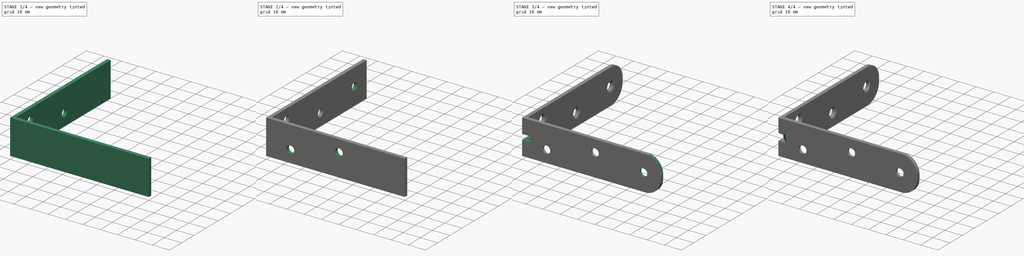
[diagram: build sequence overview — one tinted view per stage of 4, left to right]
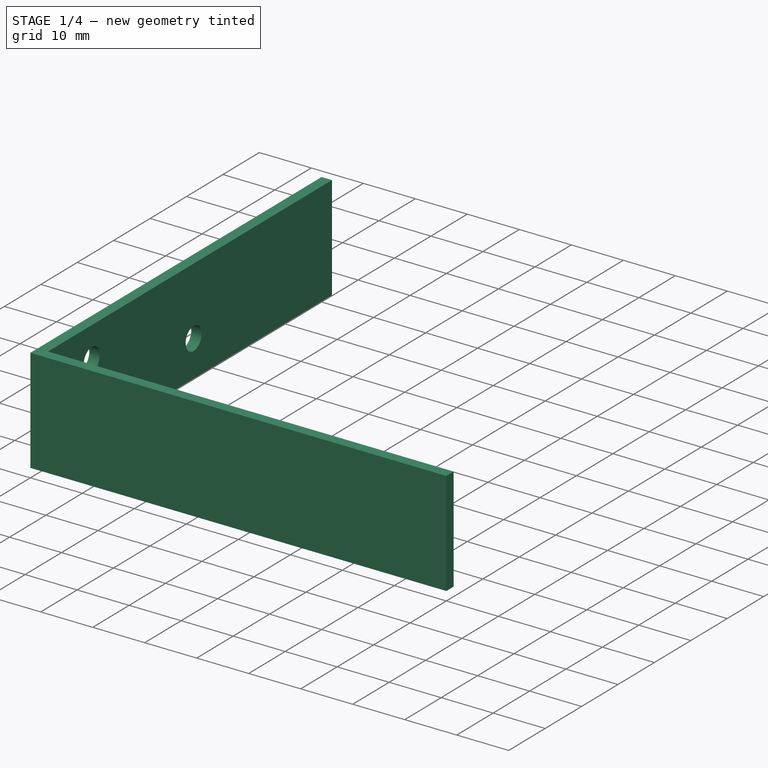
[diagram: stage 1 of 4 — iso view after this stage's code; geometry added in this stage tinted green]
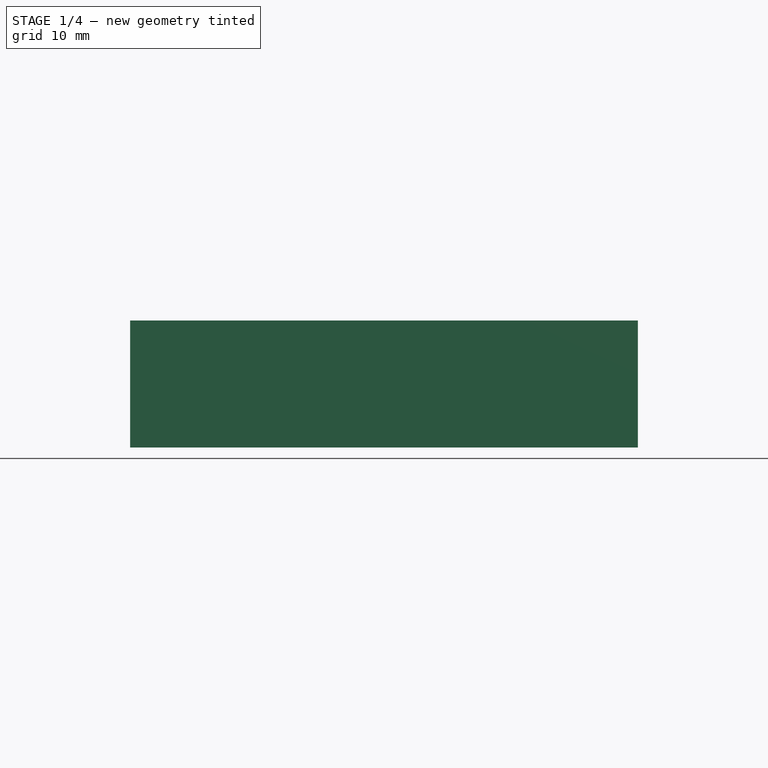
[diagram: stage 1 of 4 — front view after this stage's code; geometry added in this stage tinted green]
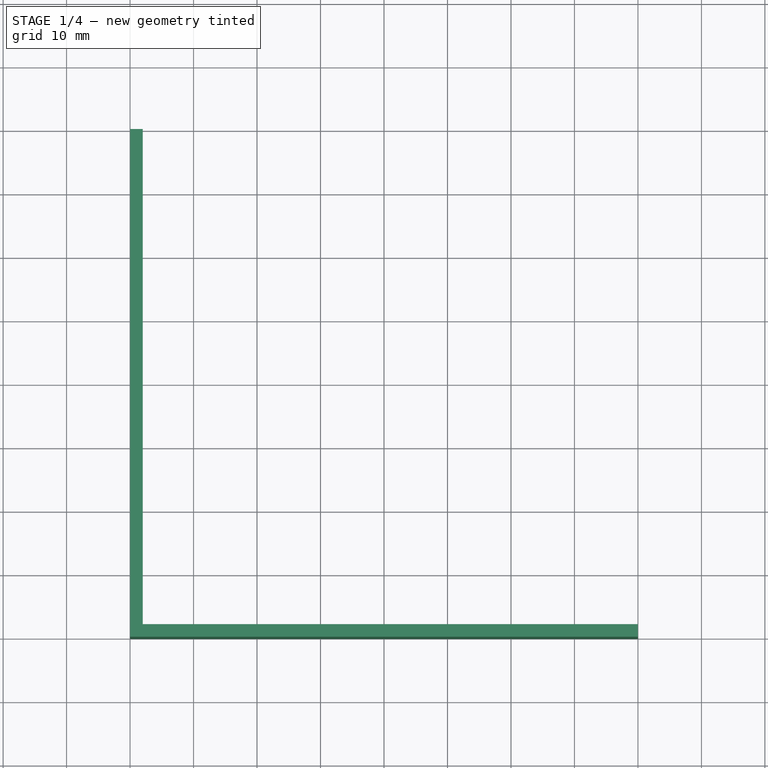
[diagram: stage 1 of 4 — top view after this stage's code; geometry added in this stage tinted green]
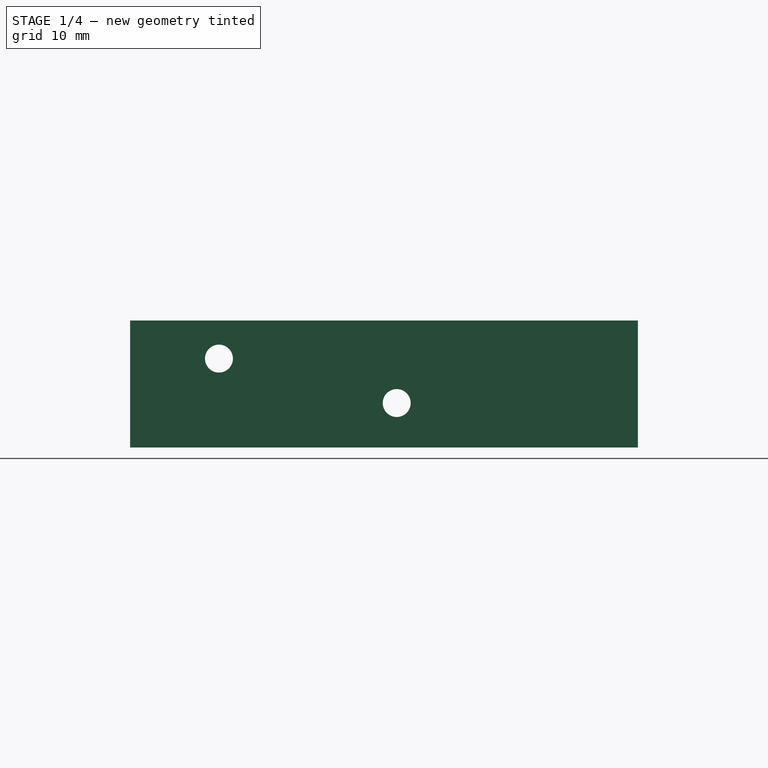
[diagram: stage 1 of 4 — right view after this stage's code; geometry added in this stage tinted green]
FCSTD DOCUMENT  (FreeCAD 1.1R20260325 (Git shallow))
Label: Angle_80_x_80_x_20_mm
License: All rights reserved
LicenseURL: http://en.wikipedia.org/wiki/All_rights_reserved
objects: Sketcher::SketchObject×9, PartDesign::Hole×6, PartDesign::Fillet×4, PartDesign::Pad×2, App::LinkGroup×2, App::Point×2, PartDesign::Pocket×1, PartDesign::Body×1, App::Part×1
note: 58 computed .brp shape members not serialized (recipe doc carries the construction recipe); baked Part::Feature solids carry a one-line shape summary decoded from their .brp

FEATURE [Sketcher::SketchObject] Sketch
  ArcFitTolerance = 0
  AttachmentSupport = -> [XY_Plane001]
  ExternalTypes = [0]
  FullyConstrained = true
  MakeInternals = false
  MapMode = 5
  _ExternalGeoVersion = 0
  sketch-geometry (6):
    g0: LineSegment StartX=0 StartY=80 StartZ=0 EndX=0 EndY=0 EndZ=0
    g1: LineSegment StartX=0 StartY=0 StartZ=0 EndX=80 EndY=0 EndZ=0
    g2: LineSegment StartX=80 StartY=0 StartZ=0 EndX=80 EndY=2 EndZ=0
    g3: LineSegment StartX=80 StartY=2 StartZ=0 EndX=2 EndY=2 EndZ=0
    g4: LineSegment StartX=2 StartY=2 StartZ=0 EndX=2 EndY=80 EndZ=0
    g5: LineSegment StartX=2 StartY=80 StartZ=0 EndX=0 EndY=80 EndZ=0
  constraints (17):
    c: PointOnObject(g0,g-2)
    c: Coincident(g0,g-1)
    c: Coincident(g0,g1)
    c: PointOnObject(g1,g-1)
    c: Coincident(g1,g2)
    c: Vertical(g2)
    c: Coincident(g2,g3)
    c: Horizontal(g3)
    c: Coincident(g3,g4)
    c: Vertical(g4)
    c: Coincident(g4,g5)
    c: Coincident(g5,g0)
    c: Horizontal(g5)
    c: Equal(g5,g2)
    c: Equal(g0,g1)
    c: DistanceX(g1,g1) = 80
    c: DistanceY(g2,g2) = 2
FEATURE [PartDesign::Pad] Pad
  Direction = (0,0,1)
  Length = 20
  Length2 = 10
  Profile = -> Sketch
  ReferenceAxis = -> Sketch [N_Axis]
  SideType = 0
  Suppressed = false
  Type = 0
  Type2 = 0
FEATURE [Sketcher::SketchObject] Sketch001
  ArcFitTolerance = 0
  AttachmentOffset = pos=(0,0,2) rot=(0,0,1;0rad)
  AttachmentSupport = -> [YZ_Plane001]
  ExternalTypes = [0]
  FullyConstrained = true
  MakeInternals = false
  MapMode = 5
  Placement = pos=(2,0,0) rot=(0.57735,0.57735,0.57735;2.0944rad)
  _ExternalGeoVersion = 0
  sketch-geometry (1):
    g0: Circle CenterX=14 CenterY=14 CenterZ=0 NormalX=0 NormalY=0 NormalZ=1 AngleXU=0 Radius=2.2
  constraints (3):
    c: DistanceY(g-1,g0) = 14
    c: DistanceX(g-1,g0) = 14
    c: Diameter(g0) = 4.4
FEATURE [PartDesign::Hole] Hole
  BaseFeature = -> Pad
  BaseProfileType = 6
  CustomThreadClearance = 0
  Depth = 232.08
  DepthType = 1
  Diameter = 4.4
  DrillForDepth = false
  DrillPoint = 1
  DrillPointAngle = 118
  HoleCutCountersinkAngle = 90
  HoleCutCustomValues = false
  HoleCutDepth = 0
  HoleCutDiameter = 6.1
  HoleCutType = 0
  ModelThread = false
  Profile = -> Sketch001
  Suppressed = false
  Tapered = false
  TaperedAngle = 90
  ThreadClass = 0
  ThreadDepth = 232.08
  ThreadDepthType = 0
  ThreadDiameter = 4.4
  ThreadDirection = 0
  ThreadFit = 0
  ThreadSize = 0
  ThreadType = 0
  Threaded = false
  UseCustomThreadClearance = false
FEATURE [Sketcher::SketchObject] Sketch002
  ArcFitTolerance = 0
  AttachmentOffset = pos=(0,0,2) rot=(0,0,1;0rad)
  AttachmentSupport = -> [YZ_Plane001]
  ExternalTypes = [0]
  FullyConstrained = true
  MakeInternals = false
  MapMode = 5
  Placement = pos=(2,0,0) rot=(0.57735,0.57735,0.57735;2.0944rad)
  _ExternalGeoVersion = 0
  sketch-geometry (1):
    g0: Circle CenterX=42 CenterY=7 CenterZ=0 NormalX=0 NormalY=0 NormalZ=1 AngleXU=0 Radius=2.2
  constraints (3):
    c: DistanceX(g-1,g0) = 42
    c: DistanceY(g-1,g0) = 7
    c: Diameter(g0) = 4.4
FEATURE [PartDesign::Hole] Hole001
  BaseFeature = -> Hole
  BaseProfileType = 6
  CustomThreadClearance = 0
  Depth = 232.08
  DepthType = 1
  Diameter = 4.4
  DrillForDepth = false
  DrillPoint = 1
  DrillPointAngle = 118
  HoleCutCountersinkAngle = 90
  HoleCutCustomValues = false
  HoleCutDepth = 0
  HoleCutDiameter = 6.1
  HoleCutType = 0
  ModelThread = false
  Profile = -> Sketch002
  Suppressed = false
  Tapered = false
  TaperedAngle = 90
  ThreadClass = 0
  ThreadDepth = 232.08
  ThreadDepthType = 0
  ThreadDiameter = 4.4
  ThreadDirection = 0
  ThreadFit = 0
  ThreadSize = 0
  ThreadType = 0
  Threaded = false
  UseCustomThreadClearance = false
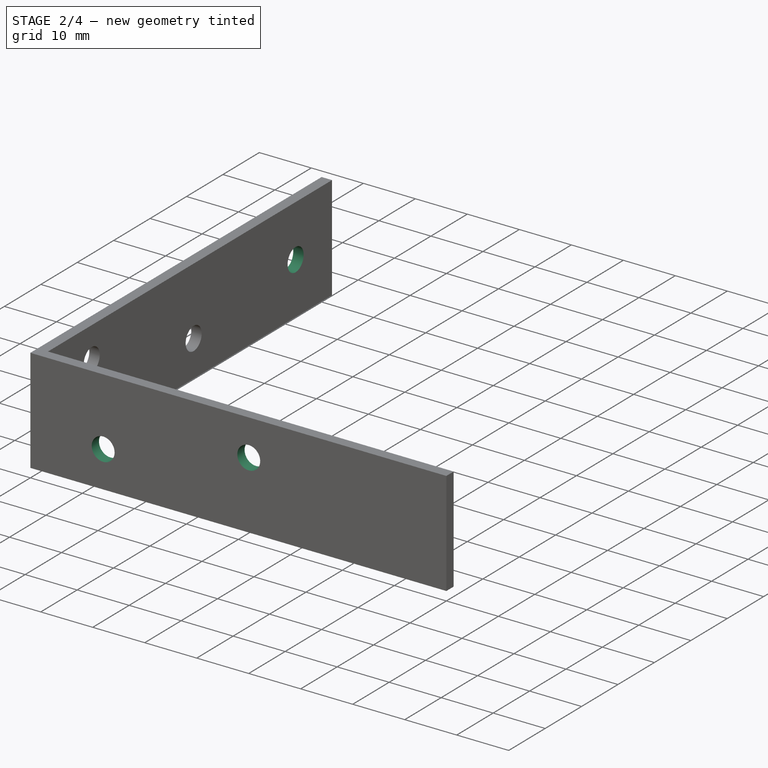
[diagram: stage 2 of 4 — iso view after this stage's code; geometry added in this stage tinted green]
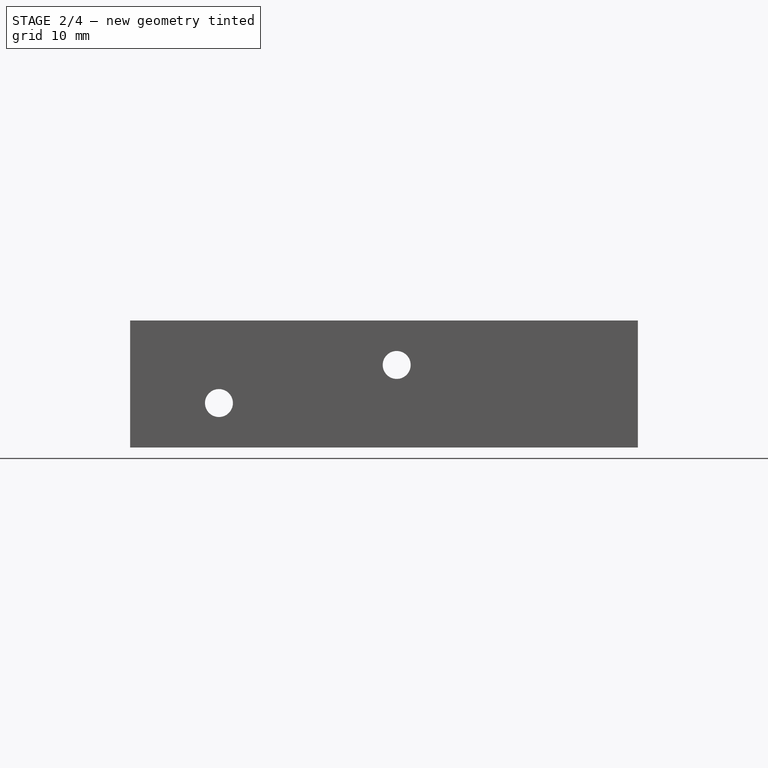
[diagram: stage 2 of 4 — front view after this stage's code; geometry added in this stage tinted green]
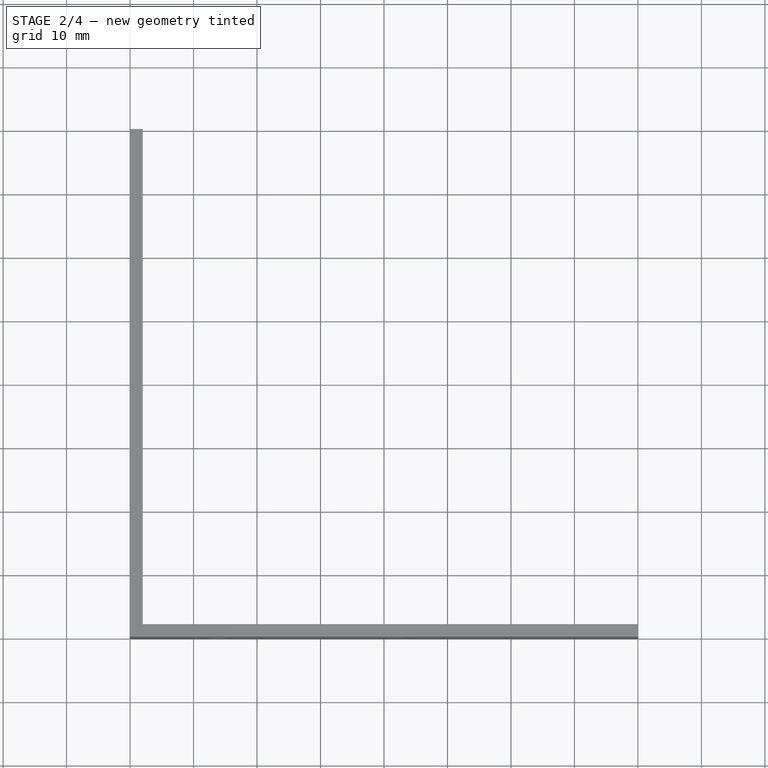
[diagram: stage 2 of 4 — top view after this stage's code; geometry added in this stage tinted green]
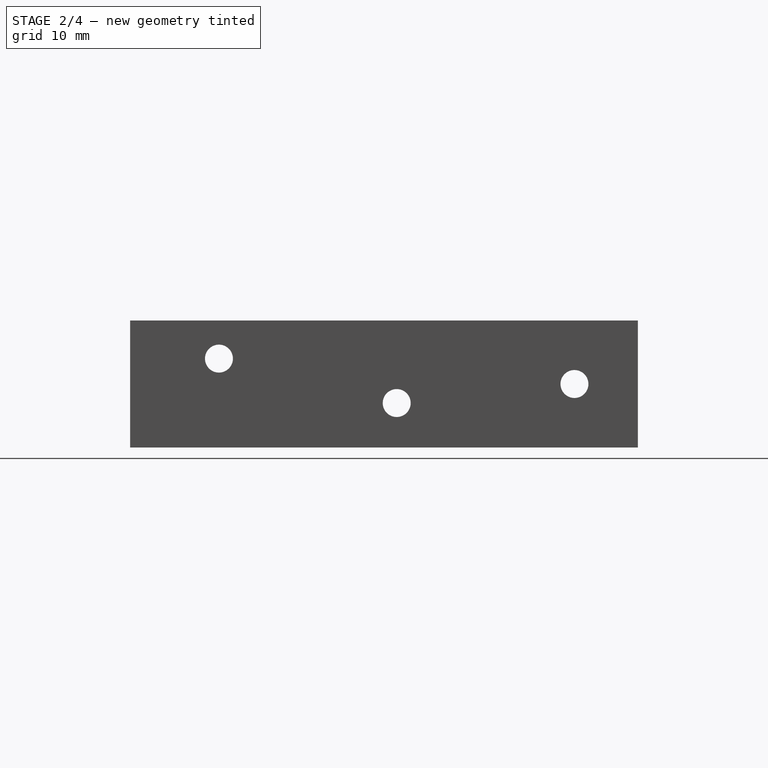
[diagram: stage 2 of 4 — right view after this stage's code; geometry added in this stage tinted green]
FEATURE [Sketcher::SketchObject] Sketch003
  ArcFitTolerance = 0
  AttachmentOffset = pos=(0,0,2) rot=(0,0,1;0rad)
  AttachmentSupport = -> [YZ_Plane001]
  ExternalTypes = [0]
  FullyConstrained = true
  MakeInternals = false
  MapMode = 5
  Placement = pos=(2,0,0) rot=(0.57735,0.57735,0.57735;2.0944rad)
  _ExternalGeoVersion = 0
  sketch-geometry (1):
    g0: Circle CenterX=70 CenterY=10 CenterZ=0 NormalX=0 NormalY=0 NormalZ=1 AngleXU=0 Radius=2.2
  constraints (3):
    c: DistanceX(g-1,g0) = 70
    c: DistanceY(g-1,g0) = 10
    c: Diameter(g0) = 4.4
FEATURE [PartDesign::Hole] Hole002
  BaseFeature = -> Hole001
  BaseProfileType = 6
  CustomThreadClearance = 0
  Depth = 232.08
  DepthType = 1
  Diameter = 4.4
  DrillForDepth = false
  DrillPoint = 1
  DrillPointAngle = 118
  HoleCutCountersinkAngle = 90
  HoleCutCustomValues = false
  HoleCutDepth = 0
  HoleCutDiameter = 6.1
  HoleCutType = 0
  ModelThread = false
  Profile = -> Sketch003
  Suppressed = false
  Tapered = false
  TaperedAngle = 90
  ThreadClass = 0
  ThreadDepth = 232.08
  ThreadDepthType = 0
  ThreadDiameter = 4.4
  ThreadDirection = 0
  ThreadFit = 0
  ThreadSize = 0
  ThreadType = 0
  Threaded = false
  UseCustomThreadClearance = false
FEATURE [Sketcher::SketchObject] Sketch004
  ArcFitTolerance = 0
  AttachmentSupport = -> [XZ_Plane001]
  ExternalTypes = [0]
  FullyConstrained = true
  MakeInternals = false
  MapMode = 5
  Placement = pos=(0,0,0) rot=(1,0,0;1.5708rad)
  _ExternalGeoVersion = 0
  sketch-geometry (1):
    g0: Circle CenterX=14 CenterY=7 CenterZ=0 NormalX=0 NormalY=0 NormalZ=1 AngleXU=0 Radius=2.2
  constraints (3):
    c: DistanceX(g-1,g0) = 14
    c: DistanceY(g-1,g0) = 7
    c: Diameter(g0) = 4.4
FEATURE [PartDesign::Hole] Hole003
  BaseFeature = -> Hole002
  BaseProfileType = 6
  CustomThreadClearance = 0
  Depth = 232.08
  DepthType = 1
  Diameter = 4.4
  DrillForDepth = false
  DrillPoint = 1
  DrillPointAngle = 118
  HoleCutCountersinkAngle = 90
  HoleCutCustomValues = false
  HoleCutDepth = 0
  HoleCutDiameter = 6.1
  HoleCutType = 0
  ModelThread = false
  Profile = -> Sketch004
  Suppressed = false
  Tapered = false
  TaperedAngle = 90
  ThreadClass = 0
  ThreadDepth = 232.08
  ThreadDepthType = 0
  ThreadDiameter = 4.4
  ThreadDirection = 0
  ThreadFit = 0
  ThreadSize = 0
  ThreadType = 0
  Threaded = false
  UseCustomThreadClearance = false
FEATURE [Sketcher::SketchObject] Sketch005
  ArcFitTolerance = 0
  AttachmentSupport = -> [XZ_Plane001]
  ExternalTypes = [0]
  FullyConstrained = true
  MakeInternals = false
  MapMode = 5
  Placement = pos=(0,0,0) rot=(1,0,0;1.5708rad)
  _ExternalGeoVersion = 0
  sketch-geometry (1):
    g0: Circle CenterX=42 CenterY=13 CenterZ=0 NormalX=0 NormalY=0 NormalZ=1 AngleXU=0 Radius=2.2
  constraints (3):
    c: DistanceX(g-1,g0) = 42
    c: DistanceY(g-1,g0) = 13
    c: Diameter(g0) = 4.4
FEATURE [PartDesign::Hole] Hole004
  BaseFeature = -> Hole003
  BaseProfileType = 6
  CustomThreadClearance = 0
  Depth = 232.08
  DepthType = 1
  Diameter = 4.4
  DrillForDepth = false
  DrillPoint = 1
  DrillPointAngle = 118
  HoleCutCountersinkAngle = 90
  HoleCutCustomValues = false
  HoleCutDepth = 0
  HoleCutDiameter = 6.1
  HoleCutType = 0
  ModelThread = false
  Profile = -> Sketch005
  Suppressed = false
  Tapered = false
  TaperedAngle = 90
  ThreadClass = 0
  ThreadDepth = 232.08
  ThreadDepthType = 0
  ThreadDiameter = 4.4
  ThreadDirection = 0
  ThreadFit = 0
  ThreadSize = 0
  ThreadType = 0
  Threaded = false
  UseCustomThreadClearance = false
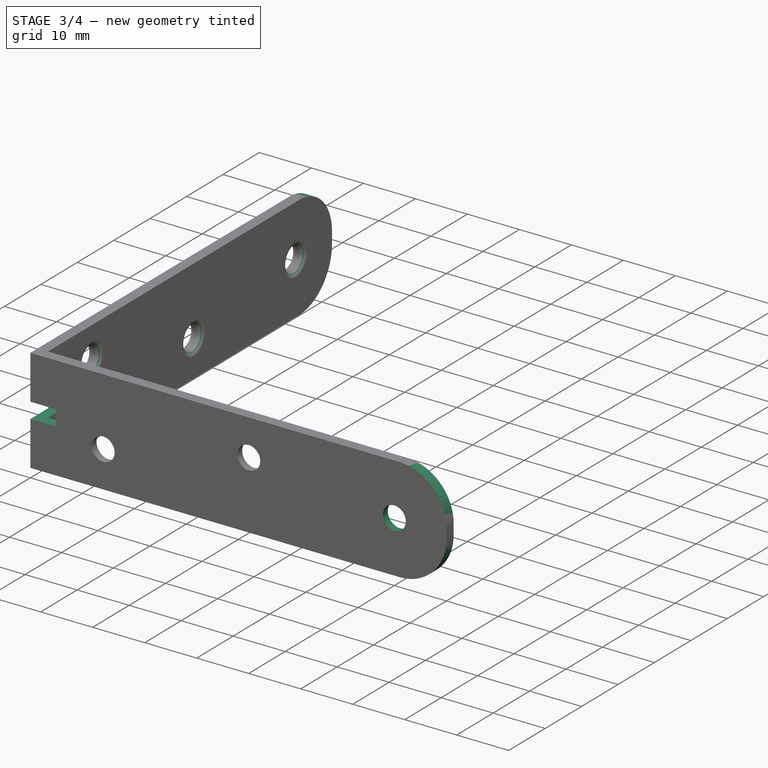
[diagram: stage 3 of 4 — iso view after this stage's code; geometry added in this stage tinted green]
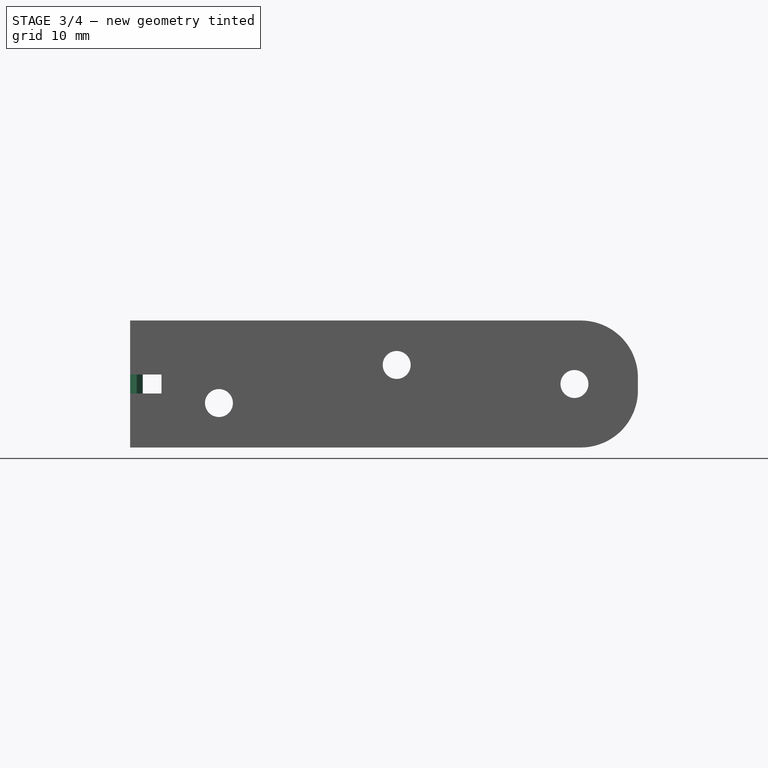
[diagram: stage 3 of 4 — front view after this stage's code; geometry added in this stage tinted green]
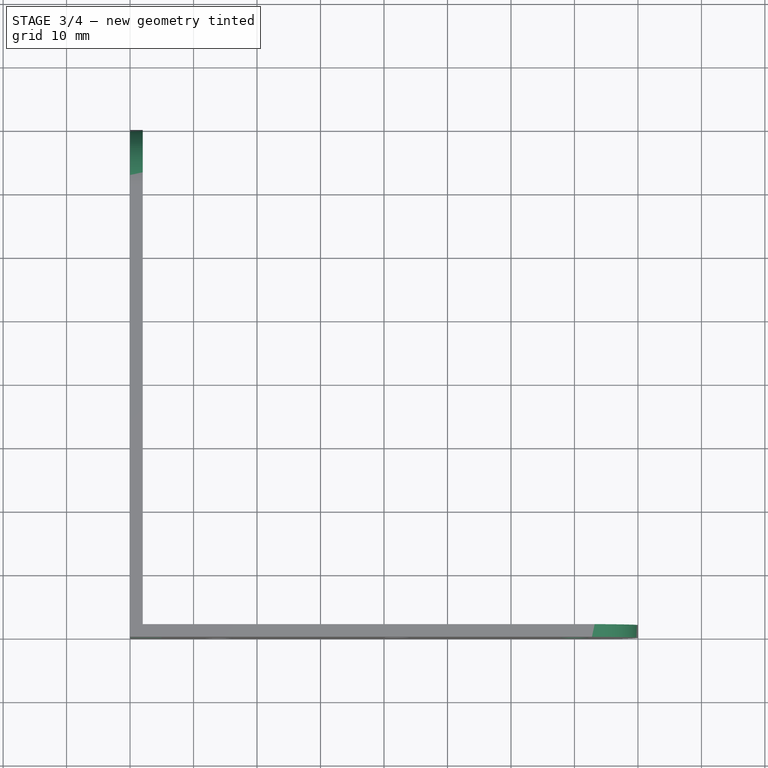
[diagram: stage 3 of 4 — top view after this stage's code; geometry added in this stage tinted green]
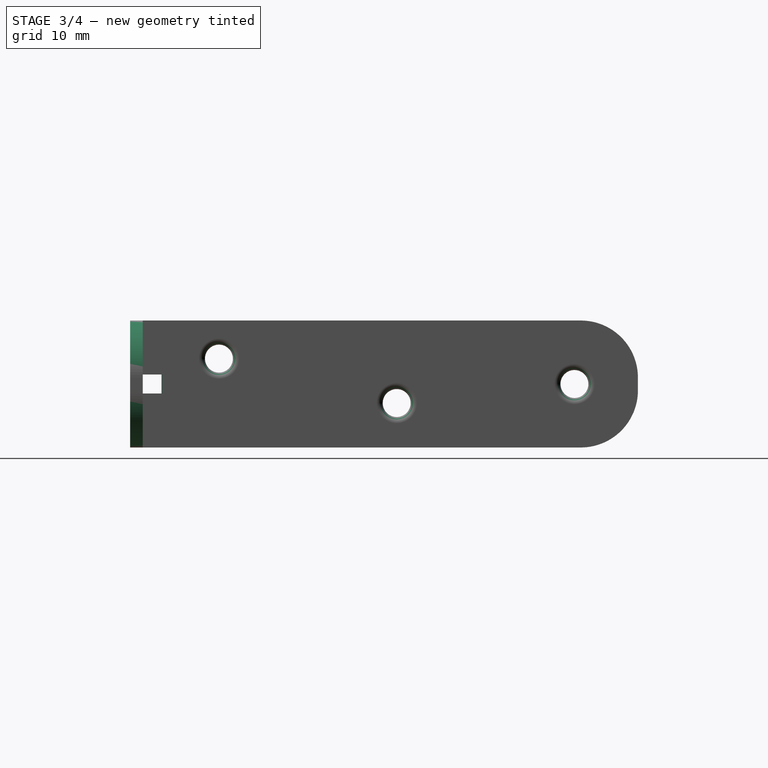
[diagram: stage 3 of 4 — right view after this stage's code; geometry added in this stage tinted green]
FEATURE [Sketcher::SketchObject] Sketch006
  ArcFitTolerance = 0
  AttachmentSupport = -> [XZ_Plane001]
  ExternalTypes = [0]
  FullyConstrained = true
  MakeInternals = false
  MapMode = 5
  Placement = pos=(0,0,0) rot=(1,0,0;1.5708rad)
  _ExternalGeoVersion = 0
  sketch-geometry (1):
    g0: Circle CenterX=70 CenterY=10 CenterZ=0 NormalX=0 NormalY=0 NormalZ=1 AngleXU=0 Radius=2.2
  constraints (3):
    c: DistanceX(g-1,g0) = 70
    c: DistanceY(g-1,g0) = 10
    c: Diameter(g0) = 4.4
FEATURE [PartDesign::Hole] Hole005
  BaseFeature = -> Hole004
  BaseProfileType = 6
  CustomThreadClearance = 0
  Depth = 232.08
  DepthType = 1
  Diameter = 4.4
  DrillForDepth = false
  DrillPoint = 1
  DrillPointAngle = 118
  HoleCutCountersinkAngle = 90
  HoleCutCustomValues = false
  HoleCutDepth = 0
  HoleCutDiameter = 6.1
  HoleCutType = 0
  ModelThread = false
  Profile = -> Sketch006
  Suppressed = false
  Tapered = false
  TaperedAngle = 90
  ThreadClass = 0
  ThreadDepth = 232.08
  ThreadDepthType = 0
  ThreadDiameter = 4.4
  ThreadDirection = 0
  ThreadFit = 0
  ThreadSize = 0
  ThreadType = 0
  Threaded = false
  UseCustomThreadClearance = false
FEATURE [PartDesign::Fillet] Fillet
  Base = -> Hole005 [Edge24,Edge26,Edge28,Edge33,Edge31,Edge32]
  BaseFeature = -> Hole005
  Radius = 1
  SupportTransform = false
  Suppressed = false
  UseAllEdges = false
FEATURE [PartDesign::Fillet] Fillet001
  Base = -> Fillet [Edge19,Edge18,Edge24,Edge21]
  BaseFeature = -> Fillet
  Radius = 9
  SupportTransform = false
  Suppressed = false
  UseAllEdges = false
FEATURE [Sketcher::SketchObject] Sketch007
  ArcFitTolerance = 0
  AttachmentOffset = pos=(0,10,0) rot=(0,1,0;0.785398rad)
  AttachmentSupport = -> [YZ_Plane001]
  ExternalTypes = [0]
  FullyConstrained = true
  MakeInternals = false
  MapMode = 5
  Placement = pos=(0,0,10) rot=(0.281085,0.678598,0.678598;2.59356rad)
  _ExternalGeoVersion = 0
  sketch-geometry (4):
    g0: LineSegment StartX=3.5 StartY=1.5 StartZ=0 EndX=-3.5 EndY=1.5 EndZ=0
    g1: LineSegment StartX=-3.5 StartY=1.5 StartZ=0 EndX=-3.5 EndY=-1.5 EndZ=0
    g2: LineSegment StartX=-3.5 StartY=-1.5 StartZ=0 EndX=3.5 EndY=-1.5 EndZ=0
    g3: LineSegment StartX=3.5 StartY=-1.5 StartZ=0 EndX=3.5 EndY=1.5 EndZ=0
  constraints (12):
    c: Coincident(g0,g1)
    c: Coincident(g1,g2)
    c: Coincident(g2,g3)
    c: Coincident(g3,g0)
    c: Horizontal(g0)
    c: Horizontal(g2)
    c: Vertical(g1)
    c: Vertical(g3)
    c: DistanceX(g0,g0) = 7
    c: DistanceY(g1,g1) = 3
    c: DistanceY(g1,g-1) = 1.5
    c: DistanceX(g0,g-1) = 3.5
FEATURE [PartDesign::Pocket] Pocket
  BaseFeature = -> Fillet001
  Direction = (-0.707107,-0.707107,0)
  Length = 5
  Length2 = 5
  Profile = -> Sketch007
  ReferenceAxis = -> Sketch007 [N_Axis]
  Reversed = true
  SideType = 0
  Suppressed = false
  Type = 0
  Type2 = 0
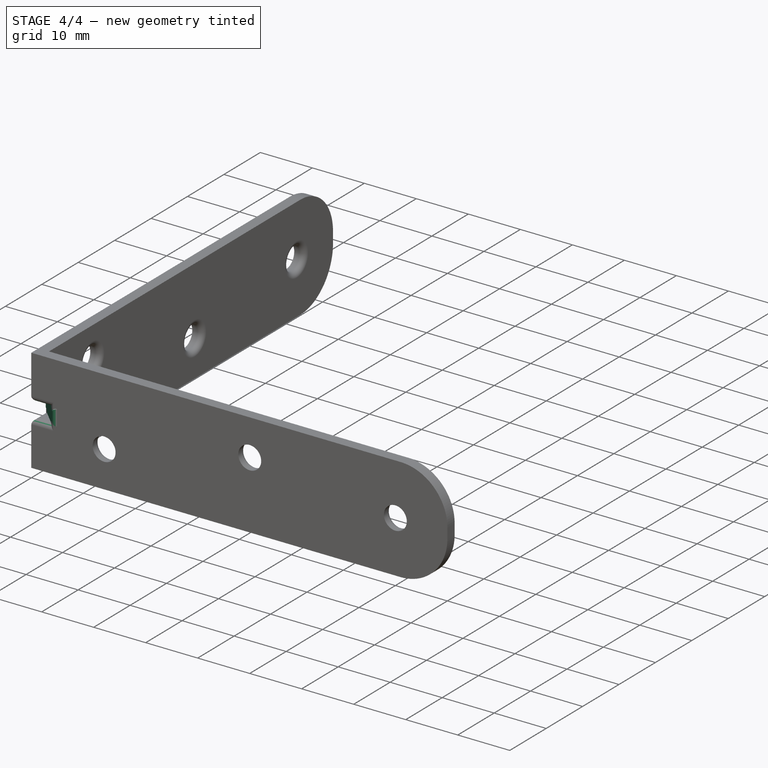
[diagram: stage 4 of 4 — iso view after this stage's code; geometry added in this stage tinted green]
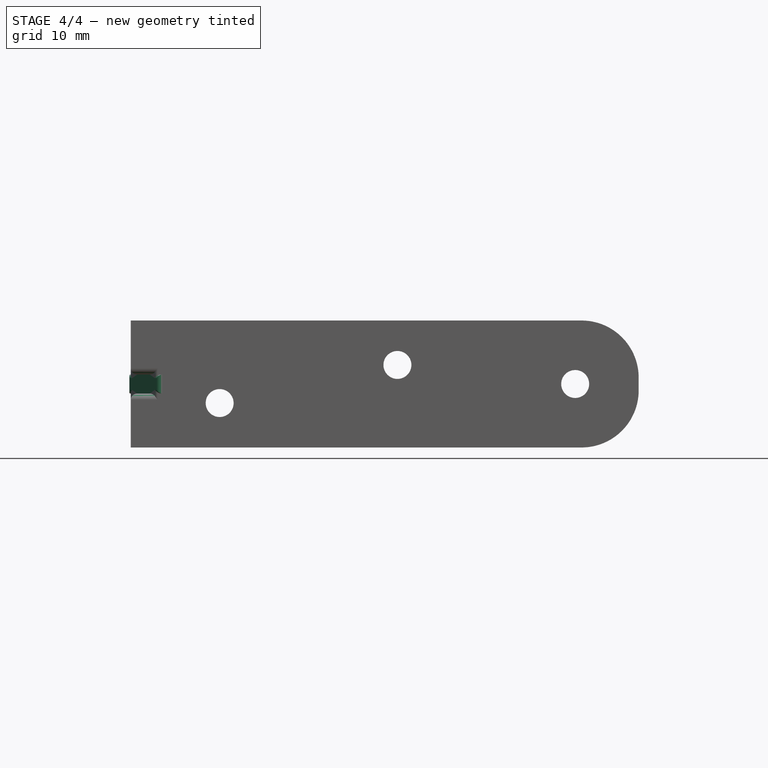
[diagram: stage 4 of 4 — front view after this stage's code; geometry added in this stage tinted green]
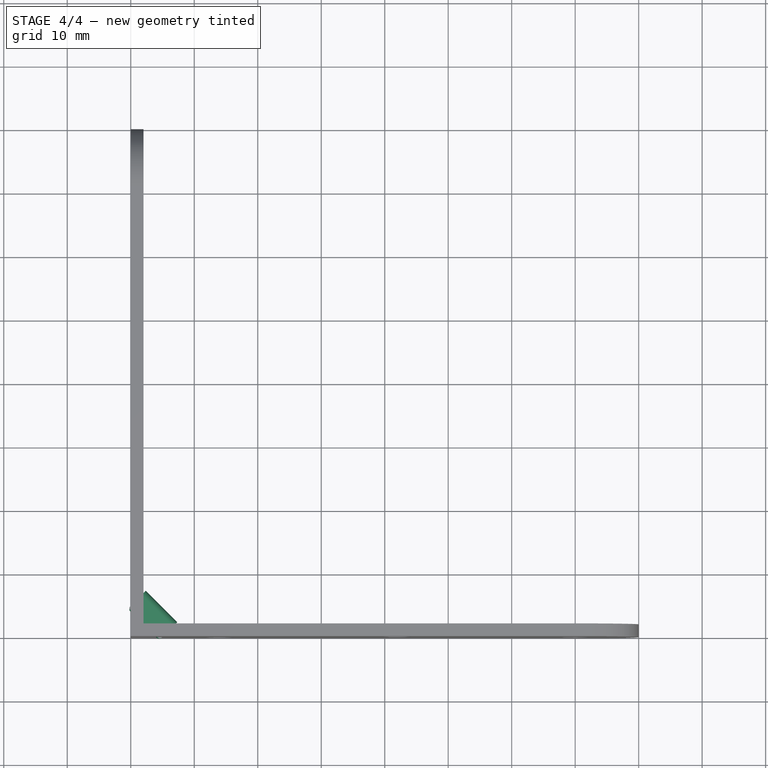
[diagram: stage 4 of 4 — top view after this stage's code; geometry added in this stage tinted green]
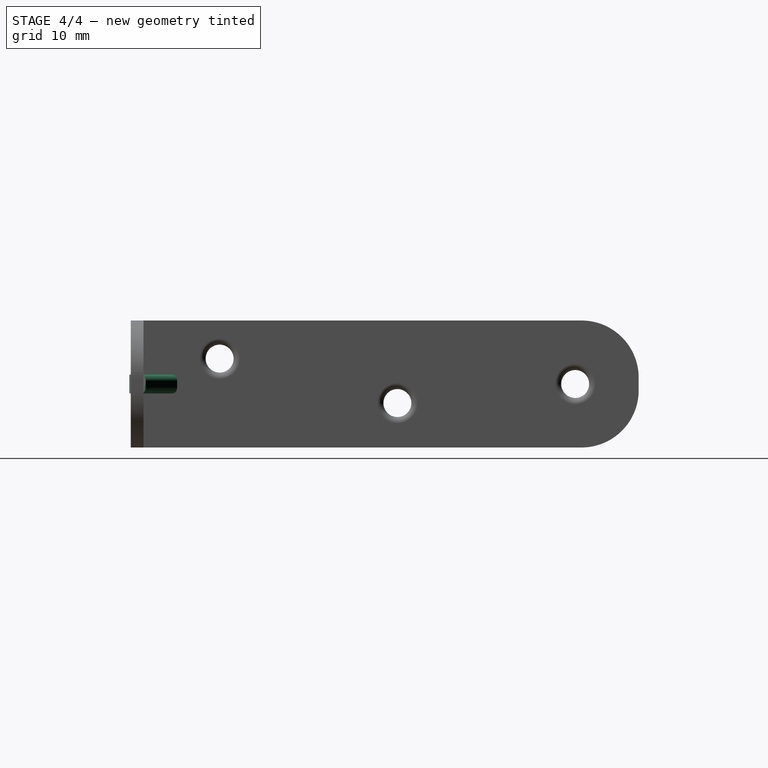
[diagram: stage 4 of 4 — right view after this stage's code; geometry added in this stage tinted green]
FEATURE [Sketcher::SketchObject] Sketch008
  ArcFitTolerance = 0
  AttachmentOffset = pos=(2,10,2) rot=(0,1,0;0.785398rad)
  AttachmentSupport = -> [YZ_Plane001]
  ExternalTypes = [0]
  FullyConstrained = true
  MakeInternals = false
  MapMode = 5
  Placement = pos=(2,2,10) rot=(0.281085,0.678598,0.678598;2.59356rad)
  _ExternalGeoVersion = 0
  sketch-geometry (4):
    g0: LineSegment StartX=3.5 StartY=1.5 StartZ=0 EndX=-3.5 EndY=1.5 EndZ=0
    g1: LineSegment StartX=-3.5 StartY=1.5 StartZ=0 EndX=-3.5 EndY=-1.5 EndZ=0
    g2: LineSegment StartX=-3.5 StartY=-1.5 StartZ=0 EndX=3.5 EndY=-1.5 EndZ=0
    g3: LineSegment StartX=3.5 StartY=-1.5 StartZ=0 EndX=3.5 EndY=1.5 EndZ=0
  constraints (12):
    c: Coincident(g0,g1)
    c: Coincident(g1,g2)
    c: Coincident(g2,g3)
    c: Coincident(g3,g0)
    c: Horizontal(g0)
    c: Horizontal(g2)
    c: Vertical(g1)
    c: Vertical(g3)
    c: DistanceX(g0,g0) = 7
    c: DistanceY(g1,g1) = 3
    c: DistanceY(g1,g-1) = 1.5
    c: DistanceX(g0,g-1) = 3.5
FEATURE [PartDesign::Pad] Pad001
  BaseFeature = -> Pocket
  Direction = (0.707107,0.707107,0)
  Length = 4
  Length2 = 10
  Profile = -> Sketch008
  ReferenceAxis = -> Sketch008 [N_Axis]
  SideType = 0
  Suppressed = false
  Type = 0
  Type2 = 0
FEATURE [PartDesign::Fillet] Fillet002
  Base = -> Pad001 [Edge95,Edge99,Edge5,Edge30,Edge28,Edge7]
  BaseFeature = -> Pad001
  Radius = 1
  SupportTransform = false
  Suppressed = false
  UseAllEdges = false
FEATURE [PartDesign::Fillet] Fillet003
  Base = -> Fillet002 [Edge48,Edge45,Edge47,Edge4,Edge44,Edge12,Edge20,Edge46,Edge49,Edge28]
  BaseFeature = -> Fillet002
  Radius = 0.6
  SupportTransform = false
  Suppressed = false
  UseAllEdges = false
FEATURE [PartDesign::Body] Body
  AllowCompound = true
  Group = -> [Sketch,Pad,Sketch001,Hole,Sketch002,Hole001,Sketch003,Hole002,Sketch004,Hole003,Sketch005,Hole004,Sketch006,Hole005,Fillet,Fillet001,Sketch007,Pocket,Sketch008,Pad001,Fillet002,Fillet003]
  Origin = -> Origin001
  Tip = -> Fillet003
FEATURE [App::Part] Part
  Group = -> [Body]
  Origin = -> Origin
FEATURE [App::LinkGroup] LinkGroup  label="Angle_80_x_80_x_20_mm, link this"
  ElementList = -> [Part]
  LinkMode = 0
FEATURE [App::LinkGroup] LinkGroup001  label="Angle_80_x_80_x_20_mm, hide this"
  ElementList = -> [LinkGroup]
  LinkMode = 0
FEATURE [App::Point] Origin002  label="Origin"
  Role = Origin
FEATURE [App::Point] Origin003  label="Origin"
  Role = Origin
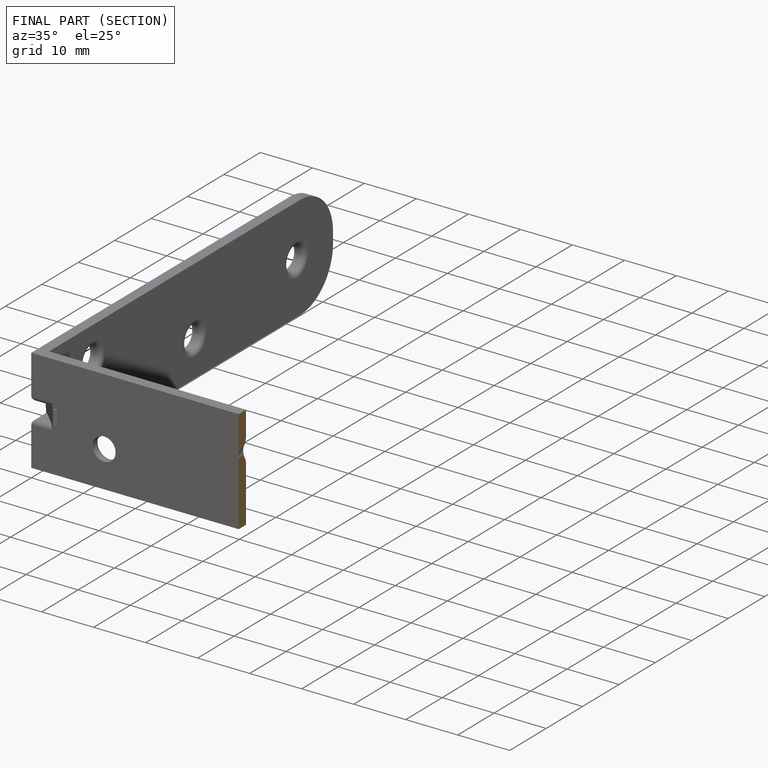
[diagram: finished part — half-section view (interior)]
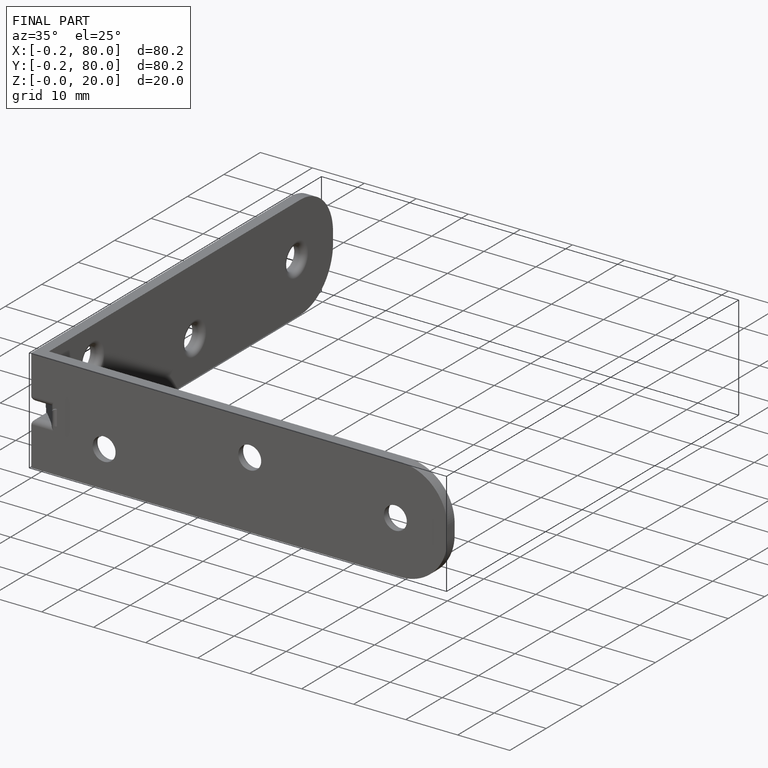
[diagram: finished part — iso view with bounding-box wireframe]
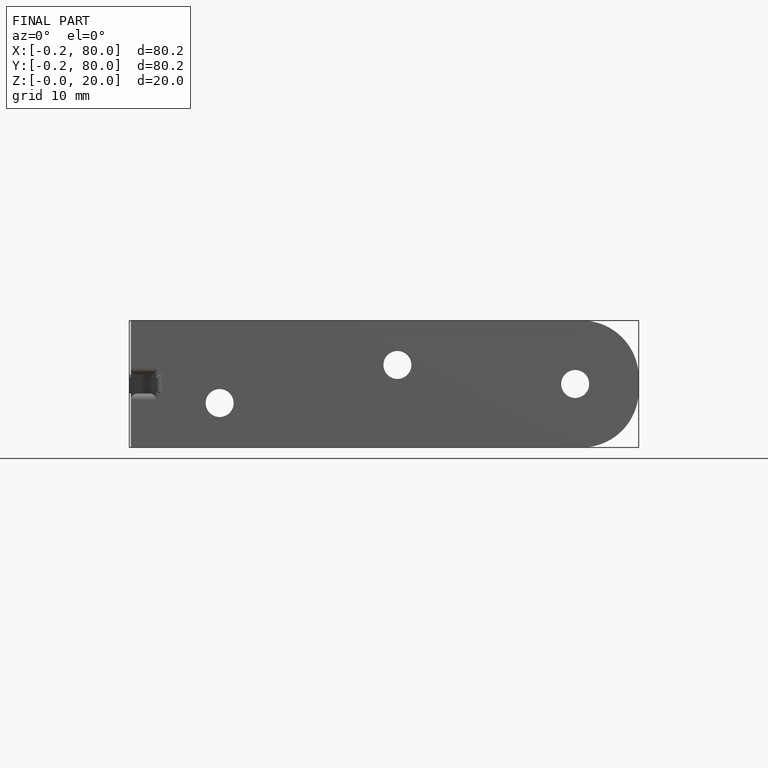
[diagram: finished part — front view with bounding-box wireframe]
